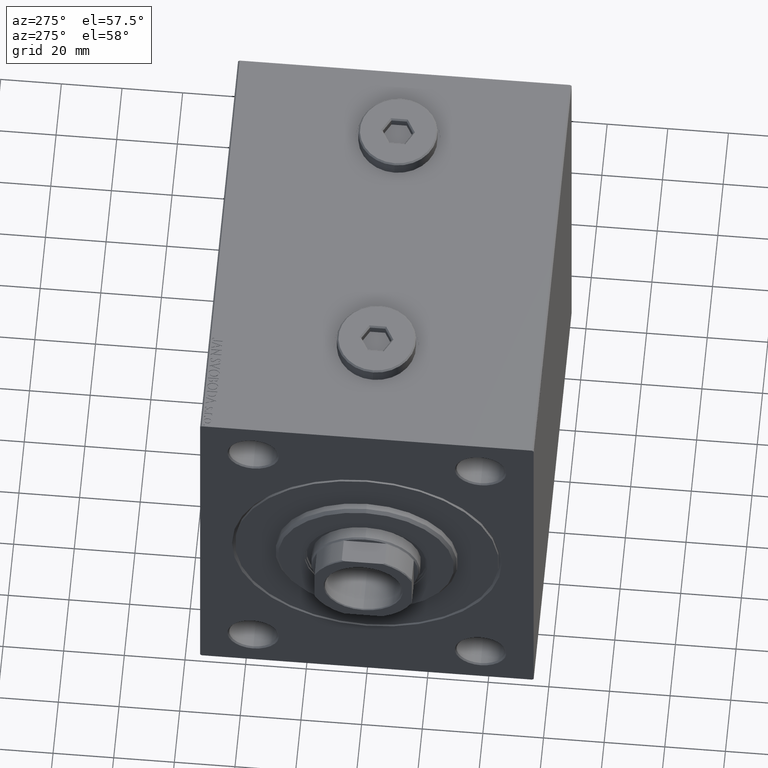
[diagram: clean part render]
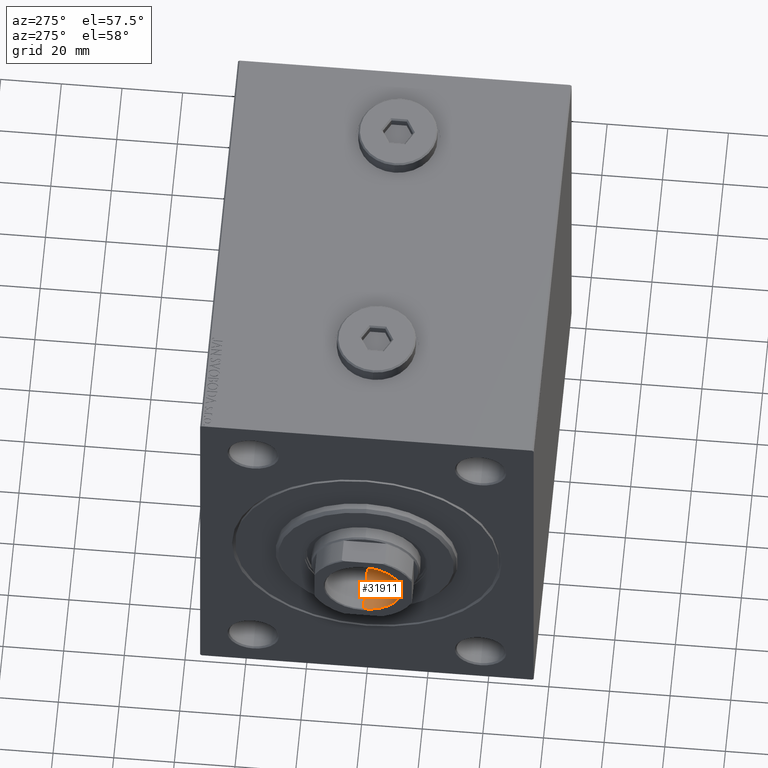
[diagram: same view with one face highlighted and labeled with its STEP entity id]
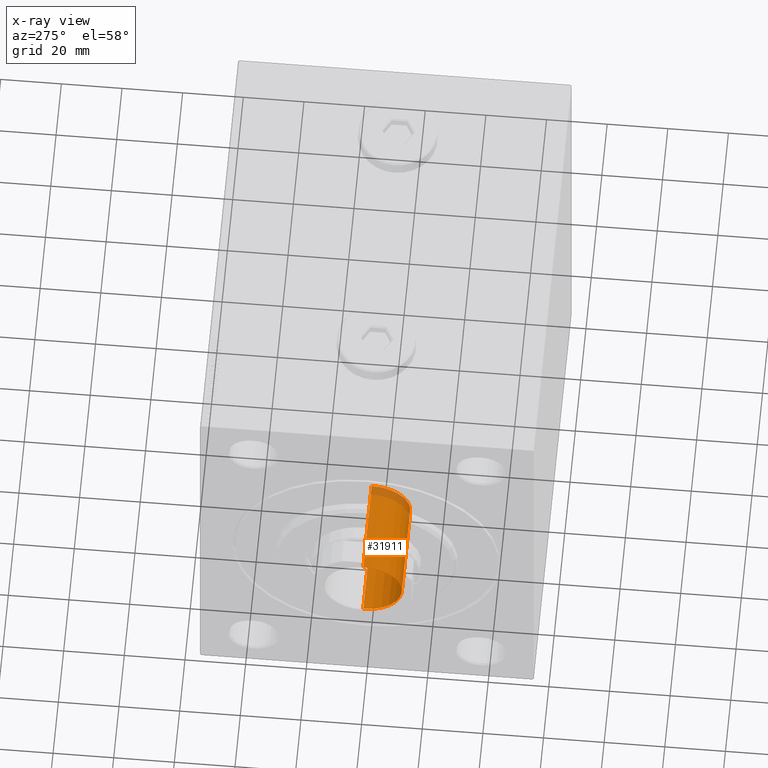
[diagram: x-ray of the same camera — body ghosted, the highlighted face saturated]
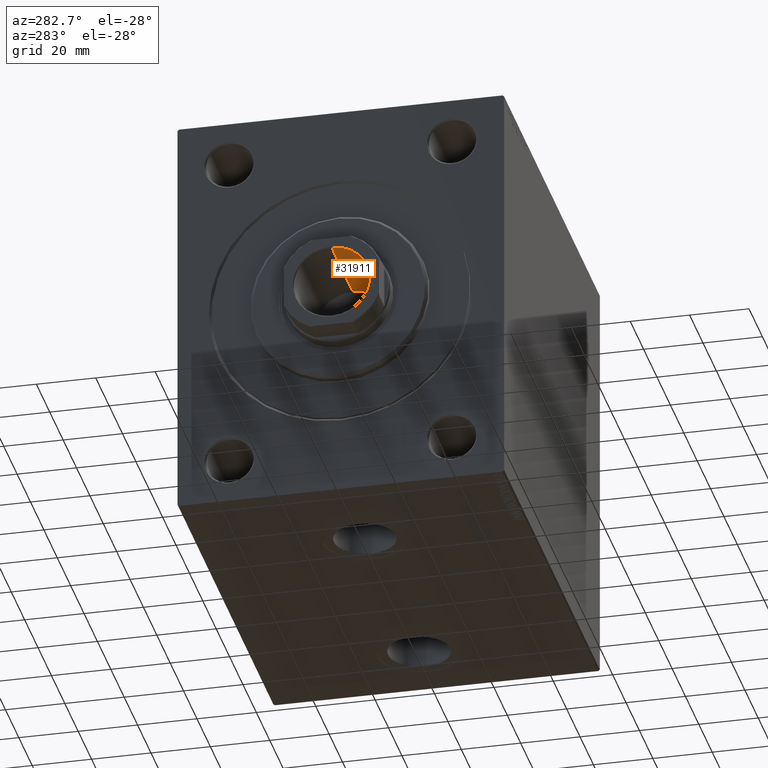
[diagram: same view with one face highlighted and labeled with its STEP entity id]
A machine part, auxiliary view. The second image highlights one B-rep face of the part: STEP entity #31911.
The next image is the same camera in x-ray: the body ghosted, the highlighted face saturated — about 8% of this face is hidden behind the body in this view.
A second angle (auxiliary view) of the same face is appended — the face is thin or edge-on in the first view.
In plain terms, the highlighted cylindrical surface (partial cylindrical patch) has radius 12.75 mm, axis along (-1, 0, 0).
Its self-contained STEP definition (entity closure, byte-faithful):
#3047 = VECTOR ( 'NONE', #19496, 1000.000000000000000 ) ;
#3181 = AXIS2_PLACEMENT_3D ( 'NONE', #26276, #26496, #23261 ) ;
#6450 = CARTESIAN_POINT ( 'NONE',  ( 12.74999999999999467, 0.000000000000000000, 104.0000000000000142 ) ) ;
#8107 = CARTESIAN_POINT ( 'NONE',  ( -12.74999999999999467, 1.561424668912874519E-15, 104.0000000000000142 ) ) ;
#13738 = DIRECTION ( 'NONE',  ( 1.000000000000000000, 0.000000000000000000, 0.000000000000000000 ) ) ;
#15622 = EDGE_CURVE ( 'NONE', #36229, #28460, #20162, .T. ) ;
#17202 = CARTESIAN_POINT ( 'NONE',  ( 0.000000000000000000, 0.000000000000000000, 104.0000000000000142 ) ) ;
#18185 = ORIENTED_EDGE ( 'NONE', *, *, #23200, .F. ) ;
#18500 = DIRECTION ( 'NONE',  ( -0.000000000000000000, -0.000000000000000000, 1.000000000000000000 ) ) ;
#19032 = CYLINDRICAL_SURFACE ( 'NONE', #42454, 12.74999999999999645 ) ;
#19496 = DIRECTION ( 'NONE',  ( -0.000000000000000000, -0.000000000000000000, 1.000000000000000000 ) ) ;
#20162 = LINE ( 'NONE', #37034, #3047 ) ;
#22503 = FACE_OUTER_BOUND ( 'NONE', #24631, .T. ) ;
#23200 = EDGE_CURVE ( 'NONE', #35518, #26217, #32359, .T. ) ;
#23261 = DIRECTION ( 'NONE',  ( 1.000000000000000000, 0.000000000000000000, 0.000000000000000000 ) ) ;
#24631 = EDGE_LOOP ( 'NONE', ( #38539, #29254, #44518, #18185 ) ) ;
#25084 = EDGE_CURVE ( 'NONE', #28460, #26217, #41535, .T. ) ;
#26217 = VERTEX_POINT ( 'NONE', #39083 ) ;
#26276 = CARTESIAN_POINT ( 'NONE',  ( 0.000000000000000000, 0.000000000000000000, 135.7000000000000171 ) ) ;
#26496 = DIRECTION ( 'NONE',  ( 0.000000000000000000, 0.000000000000000000, 1.000000000000000000 ) ) ;
#28460 = VERTEX_POINT ( 'NONE', #43443 ) ;
#28902 = CARTESIAN_POINT ( 'NONE',  ( 12.74999999999999645, 0.000000000000000000, 136.0000000000000000 ) ) ;
#29254 = ORIENTED_EDGE ( 'NONE', *, *, #15622, .T. ) ;
#31911 = ADVANCED_FACE ( 'NONE', ( #22503 ), #19032, .F. ) ;
#32359 = LINE ( 'NONE', #28902, #42219 ) ;
#32579 = EDGE_CURVE ( 'NONE', #36229, #35518, #38810, .T. ) ;
#32883 = CARTESIAN_POINT ( 'NONE',  ( 0.000000000000000000, 0.000000000000000000, 136.0000000000000000 ) ) ;
#35518 = VERTEX_POINT ( 'NONE', #6450 ) ;
#35851 = AXIS2_PLACEMENT_3D ( 'NONE', #17202, #37772, #13738 ) ;
#36229 = VERTEX_POINT ( 'NONE', #8107 ) ;
#37034 = CARTESIAN_POINT ( 'NONE',  ( -12.74999999999999645, 1.561424668912874717E-15, 136.0000000000000000 ) ) ;
#37772 = DIRECTION ( 'NONE',  ( -0.000000000000000000, -0.000000000000000000, 1.000000000000000000 ) ) ;
#38539 = ORIENTED_EDGE ( 'NONE', *, *, #32579, .F. ) ;
#38810 = CIRCLE ( 'NONE', #35851, 12.74999999999999467 ) ;
#39083 = CARTESIAN_POINT ( 'NONE',  ( 12.74999999999999645, 0.000000000000000000, 135.7000000000000171 ) ) ;
#40286 = DIRECTION ( 'NONE',  ( 1.000000000000000000, 0.000000000000000000, 0.000000000000000000 ) ) ;
#41535 = CIRCLE ( 'NONE', #3181, 12.74999999999999645 ) ;
#42219 = VECTOR ( 'NONE', #18500, 1000.000000000000000 ) ;
#42454 = AXIS2_PLACEMENT_3D ( 'NONE', #32883, #43985, #40286 ) ;
#43443 = CARTESIAN_POINT ( 'NONE',  ( -12.74999999999999645, 1.561424668912874717E-15, 135.7000000000000171 ) ) ;
#43985 = DIRECTION ( 'NONE',  ( -0.000000000000000000, -0.000000000000000000, 1.000000000000000000 ) ) ;
#44518 = ORIENTED_EDGE ( 'NONE', *, *, #25084, .T. ) ;